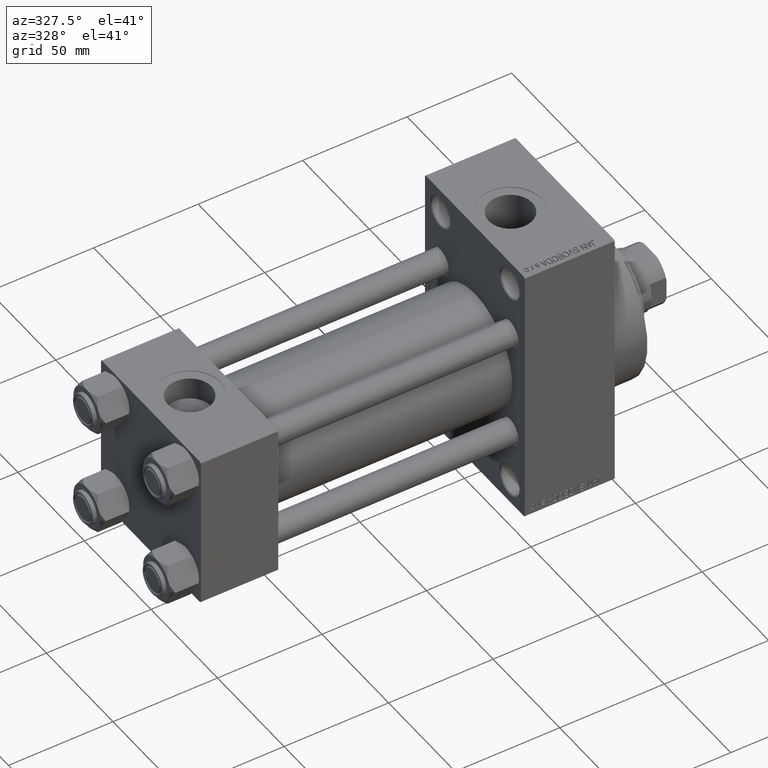
[diagram: clean part render]
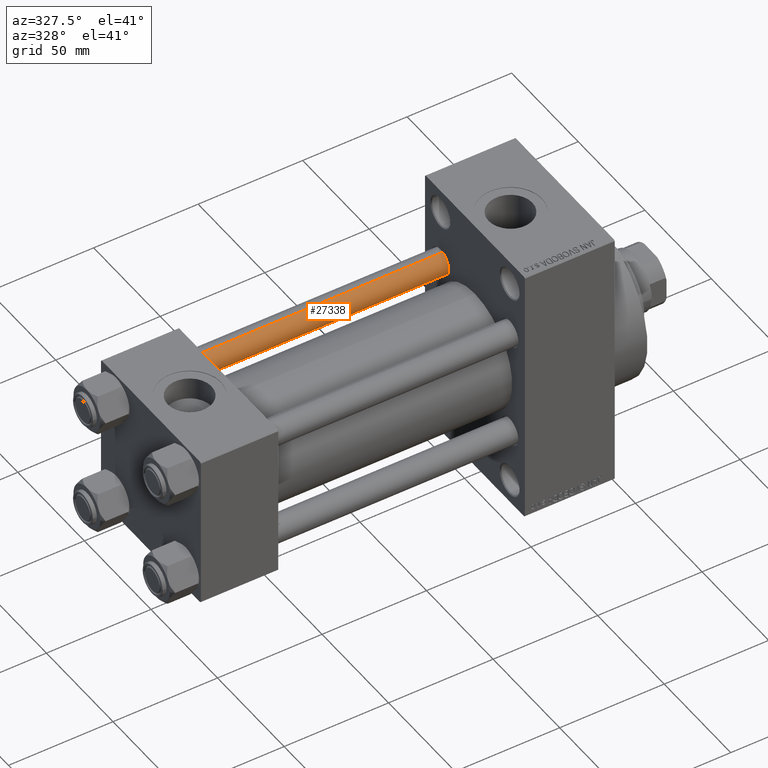
[diagram: same view with one face highlighted and labeled with its STEP entity id]
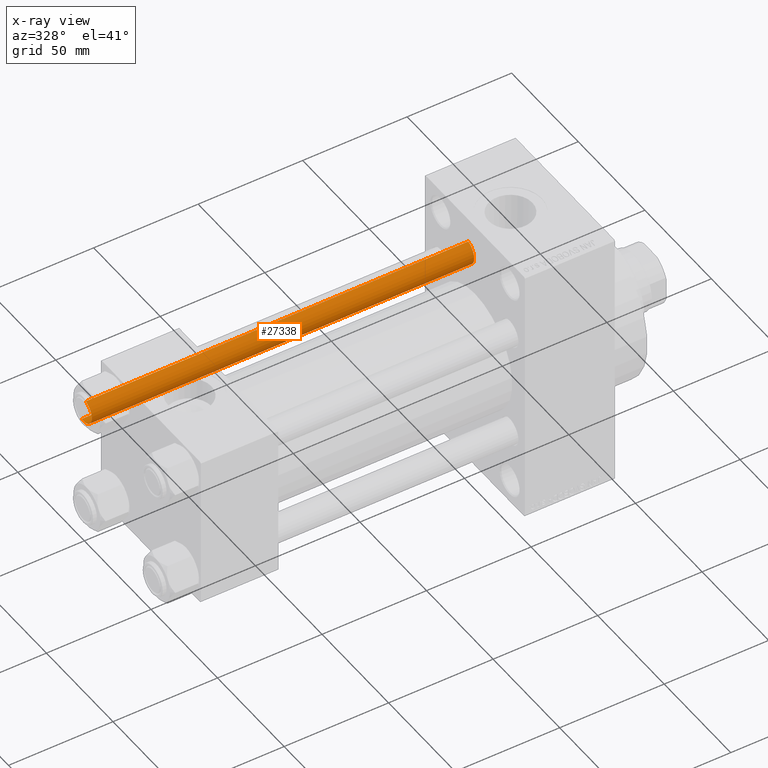
[diagram: x-ray of the same camera — body ghosted, the highlighted face saturated]
A machine part, auxiliary view. The second image highlights one B-rep face of the part: STEP entity #27338.
The next image is the same camera in x-ray: the body ghosted, the highlighted face saturated — about 0% of this face is hidden behind the body in this view.
In plain terms, the highlighted cylindrical surface (edge-blend (fillet) strip) has radius 6 mm, axis along (-1, -0, 0).
Its self-contained STEP definition (entity closure, byte-faithful):
#646 = LINE ( 'NONE', #10729, #9630 ) ;
#1634 = AXIS2_PLACEMENT_3D ( 'NONE', #16598, #45624, #12780 ) ;
#2382 = DIRECTION ( 'NONE',  ( 0.000000000000000000, 0.000000000000000000, -1.000000000000000000 ) ) ;
#2625 = DIRECTION ( 'NONE',  ( -1.000000000000000000, 0.000000000000000000, 0.000000000000000000 ) ) ;
#2935 = CARTESIAN_POINT ( 'NONE',  ( -6.000000000000000888, 0.000000000000000000, 184.0000000000000000 ) ) ;
#5574 = CIRCLE ( 'NONE', #1634, 6.000000000000000888 ) ;
#5833 = VERTEX_POINT ( 'NONE', #31603 ) ;
#6891 = EDGE_LOOP ( 'NONE', ( #17394, #22971, #41638, #25652 ) ) ;
#9630 = VECTOR ( 'NONE', #40013, 1000.000000000000000 ) ;
#9819 = FACE_OUTER_BOUND ( 'NONE', #6891, .T. ) ;
#10308 = EDGE_CURVE ( 'NONE', #34786, #46393, #5574, .T. ) ;
#10567 = VERTEX_POINT ( 'NONE', #40570 ) ;
#10729 = CARTESIAN_POINT ( 'NONE',  ( 6.000000000000000888, 7.347880794884120722E-16, 184.0000000000000000 ) ) ;
#12780 = DIRECTION ( 'NONE',  ( 1.000000000000000000, 0.000000000000000000, 0.000000000000000000 ) ) ;
#13420 = CARTESIAN_POINT ( 'NONE',  ( 0.000000000000000000, 0.000000000000000000, 184.0000000000000000 ) ) ;
#15096 = LINE ( 'NONE', #2935, #47146 ) ;
#16598 = CARTESIAN_POINT ( 'NONE',  ( 0.000000000000000000, 0.000000000000000000, 0.5000000000000004441 ) ) ;
#17394 = ORIENTED_EDGE ( 'NONE', *, *, #20878, .F. ) ;
#20596 = EDGE_CURVE ( 'NONE', #10567, #34786, #15096, .T. ) ;
#20878 = EDGE_CURVE ( 'NONE', #5833, #46393, #646, .T. ) ;
#21124 = CIRCLE ( 'NONE', #44890, 6.000000000000000888 ) ;
#22509 = CARTESIAN_POINT ( 'NONE',  ( -6.000000000000000888, 0.000000000000000000, 0.5000000000000004441 ) ) ;
#22971 = ORIENTED_EDGE ( 'NONE', *, *, #25578, .T. ) ;
#25578 = EDGE_CURVE ( 'NONE', #5833, #10567, #21124, .T. ) ;
#25652 = ORIENTED_EDGE ( 'NONE', *, *, #10308, .T. ) ;
#27338 = ADVANCED_FACE ( 'NONE', ( #9819 ), #46271, .T. ) ;
#28746 = DIRECTION ( 'NONE',  ( 1.000000000000000000, 0.000000000000000000, 0.000000000000000000 ) ) ;
#29737 = DIRECTION ( 'NONE',  ( -0.000000000000000000, -0.000000000000000000, -1.000000000000000000 ) ) ;
#31462 = CARTESIAN_POINT ( 'NONE',  ( 6.000000000000000888, 7.347880794884120722E-16, 0.5000000000000004441 ) ) ;
#31603 = CARTESIAN_POINT ( 'NONE',  ( 6.000000000000000888, 7.347880794884120722E-16, 183.5000000000000000 ) ) ;
#32722 = AXIS2_PLACEMENT_3D ( 'NONE', #13420, #35493, #2625 ) ;
#34786 = VERTEX_POINT ( 'NONE', #22509 ) ;
#35246 = CARTESIAN_POINT ( 'NONE',  ( 0.000000000000000000, 0.000000000000000000, 183.5000000000000000 ) ) ;
#35493 = DIRECTION ( 'NONE',  ( -0.000000000000000000, -0.000000000000000000, -1.000000000000000000 ) ) ;
#40013 = DIRECTION ( 'NONE',  ( -0.000000000000000000, -0.000000000000000000, -1.000000000000000000 ) ) ;
#40570 = CARTESIAN_POINT ( 'NONE',  ( -6.000000000000000888, 0.000000000000000000, 183.5000000000000000 ) ) ;
#41638 = ORIENTED_EDGE ( 'NONE', *, *, #20596, .T. ) ;
#44890 = AXIS2_PLACEMENT_3D ( 'NONE', #35246, #2382, #28746 ) ;
#45624 = DIRECTION ( 'NONE',  ( -0.000000000000000000, -0.000000000000000000, 1.000000000000000000 ) ) ;
#46271 = CYLINDRICAL_SURFACE ( 'NONE', #32722, 6.000000000000000888 ) ;
#46393 = VERTEX_POINT ( 'NONE', #31462 ) ;
#47146 = VECTOR ( 'NONE', #29737, 1000.000000000000000 ) ;